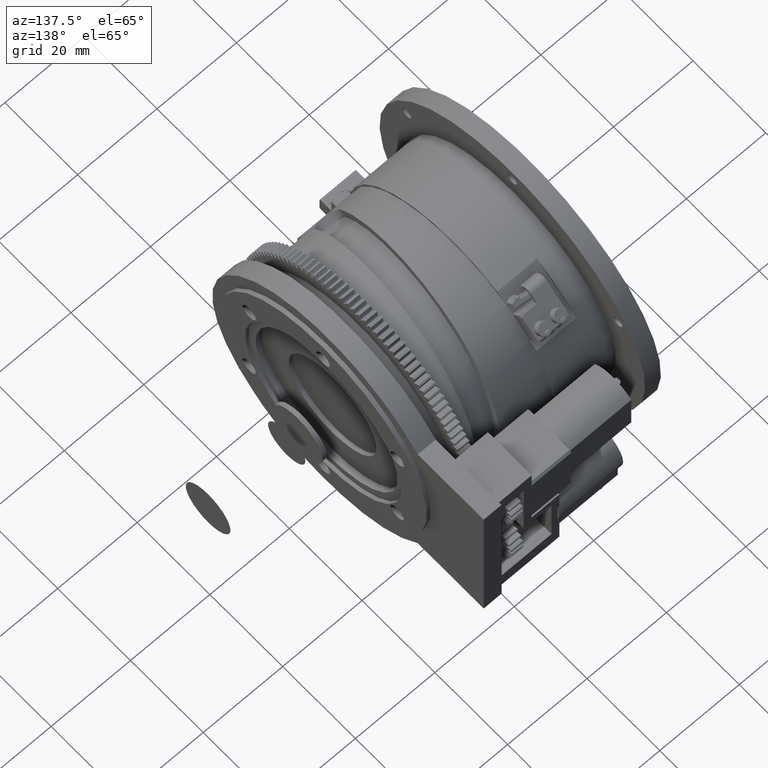
[diagram: clean part render]
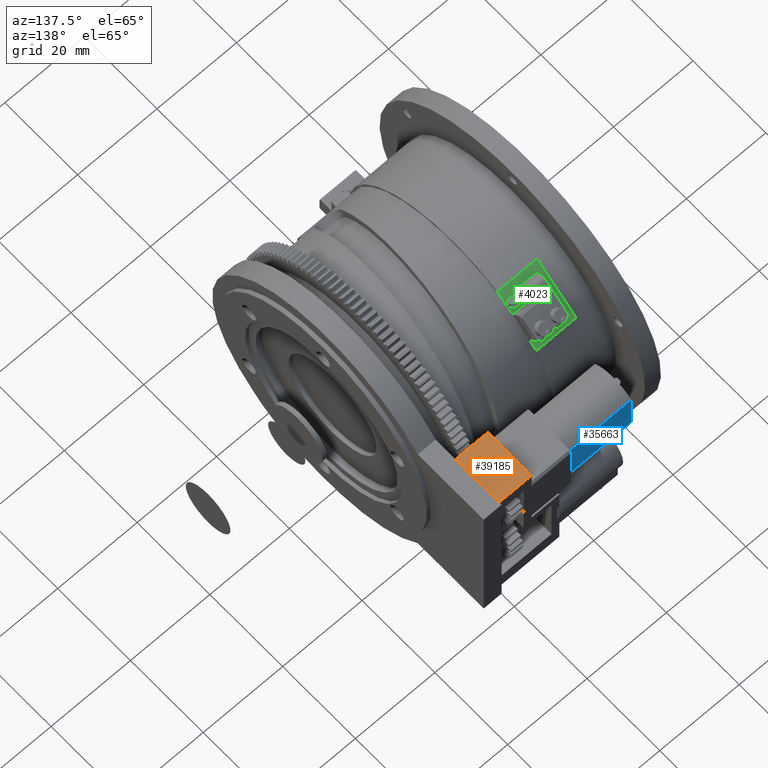
[diagram: same view with three faces highlighted in distinct colors, each labeled with its STEP entity id]
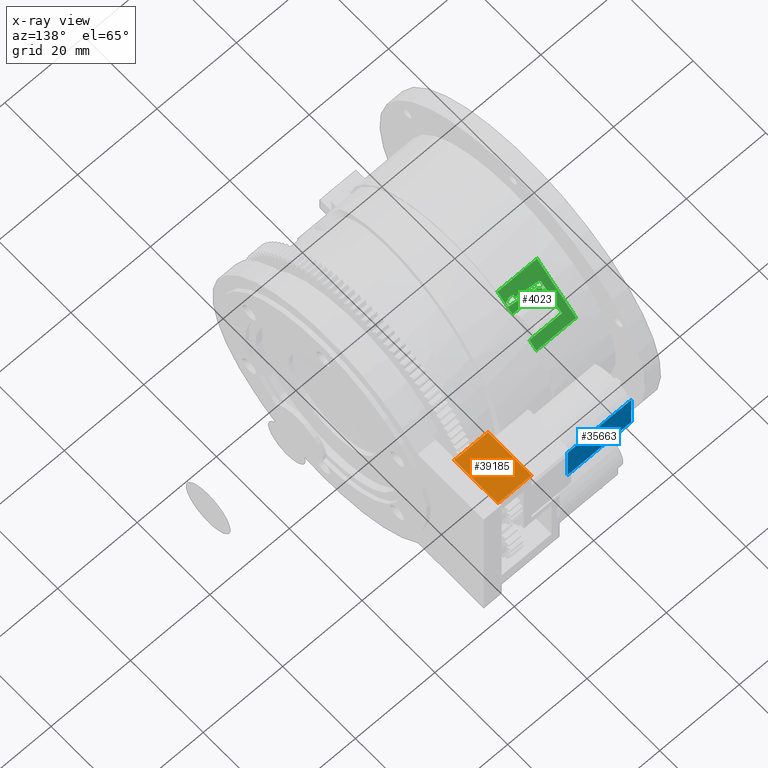
[diagram: x-ray of the same camera — body ghosted, the three highlighted faces saturated]
A machine part, auxiliary view with three faces highlighted in distinct colors.
The next image is the same camera in x-ray (body ghosted, the three faces saturated) — at least one of them is partly hidden behind the body in this view.
Their STEP definitions:

[orange] entity #39185 — the highlighted planar face has unit normal (-0, -0, -1).
#2019 = CARTESIAN_POINT ( 'NONE',  ( 37.44000000000000483, 29.98000000000000753, 18.50000000000000355 ) ) ;
#5666 = ORIENTED_EDGE ( 'NONE', *, *, #29638, .F. ) ;
#5904 = CARTESIAN_POINT ( 'NONE',  ( 45.94000000000001904, 41.98000000000001819, 18.50000000000000355 ) ) ;
#6383 = VECTOR ( 'NONE', #12009, 1000.000000000000000 ) ;
#9900 = VECTOR ( 'NONE', #43400, 1000.000000000000000 ) ;
#10970 = CARTESIAN_POINT ( 'NONE',  ( 45.94000000000001904, 41.98000000000002530, 18.50000000000000355 ) ) ;
#11427 = VERTEX_POINT ( 'NONE', #29837 ) ;
#12009 = DIRECTION ( 'NONE',  ( -3.775652461192201324E-16, -1.000000000000000000, -0.000000000000000000 ) ) ;
#13869 = LINE ( 'NONE', #38617, #6383 ) ;
#15487 = EDGE_CURVE ( 'NONE', #43794, #11427, #23796, .T. ) ;
#18585 = CARTESIAN_POINT ( 'NONE',  ( 37.44000000000001194, 41.98000000000001819, 18.50000000000000355 ) ) ;
#18798 = LINE ( 'NONE', #10970, #53298 ) ;
#19083 = DIRECTION ( 'NONE',  ( -0.000000000000000000, -1.000000000000000000, 5.262361112121564272E-16 ) ) ;
#19385 = CARTESIAN_POINT ( 'NONE',  ( 45.94000000000001904, 41.98000000000002530, 18.50000000000000355 ) ) ;
#23194 = EDGE_CURVE ( 'NONE', #43794, #44353, #13869, .T. ) ;
#23796 = LINE ( 'NONE', #5904, #41369 ) ;
#25244 = EDGE_LOOP ( 'NONE', ( #5666, #29758, #34669, #33561 ) ) ;
#25710 = CARTESIAN_POINT ( 'NONE',  ( 45.16727272727273146, 29.98000000000001464, 18.49999999999998934 ) ) ;
#28023 = FACE_OUTER_BOUND ( 'NONE', #25244, .T. ) ;
#29638 = EDGE_CURVE ( 'NONE', #11427, #42558, #18798, .T. ) ;
#29758 = ORIENTED_EDGE ( 'NONE', *, *, #15487, .F. ) ;
#29837 = CARTESIAN_POINT ( 'NONE',  ( 45.94000000000001904, 41.98000000000001819, 18.50000000000000000 ) ) ;
#30315 = EDGE_CURVE ( 'NONE', #42558, #44353, #34398, .T. ) ;
#33561 = ORIENTED_EDGE ( 'NONE', *, *, #30315, .F. ) ;
#34398 = LINE ( 'NONE', #25710, #9900 ) ;
#34669 = ORIENTED_EDGE ( 'NONE', *, *, #23194, .T. ) ;
#35201 = CARTESIAN_POINT ( 'NONE',  ( 45.94000000000001194, 29.98000000000000753, 18.49999999999999645 ) ) ;
#36535 = DIRECTION ( 'NONE',  ( 1.000000000000000000, -1.543932243363134540E-31, -2.933915424022821619E-16 ) ) ;
#38617 = CARTESIAN_POINT ( 'NONE',  ( 37.44000000000001194, 41.98000000000001819, 18.50000000000000711 ) ) ;
#39185 = ADVANCED_FACE ( 'NONE', ( #28023 ), #41089, .F. ) ;
#41089 = PLANE ( 'NONE',  #49449 ) ;
#41369 = VECTOR ( 'NONE', #36535, 1000.000000000000000 ) ;
#42558 = VERTEX_POINT ( 'NONE', #35201 ) ;
#43400 = DIRECTION ( 'NONE',  ( -1.000000000000000000, 3.775652461192197380E-16, -1.986884668466389617E-31 ) ) ;
#43794 = VERTEX_POINT ( 'NONE', #18585 ) ;
#44353 = VERTEX_POINT ( 'NONE', #2019 ) ;
#44856 = DIRECTION ( 'NONE',  ( 0.000000000000000000, 1.000000000000000000, -5.262361112121564272E-16 ) ) ;
#49198 = DIRECTION ( 'NONE',  ( -2.933915424022821619E-16, -5.262361112121564272E-16, -1.000000000000000000 ) ) ;
#49449 = AXIS2_PLACEMENT_3D ( 'NONE', #19385, #49198, #44856 ) ;
#53298 = VECTOR ( 'NONE', #19083, 1000.000000000000000 ) ;

[blue] entity #35663 — the highlighted planar face has unit normal (0, 1, -0).
#156 = PLANE ( 'NONE',  #32930 ) ;
#217 = VERTEX_POINT ( 'NONE', #7545 ) ;
#642 = CARTESIAN_POINT ( 'NONE',  ( 27.44000000001278750, 40.98000000015527178, 12.39896708664440439 ) ) ;
#3631 = CARTESIAN_POINT ( 'NONE',  ( 500036.9399625599617, 40.97999999996648768, 12.39896708664440439 ) ) ;
#6250 = DIRECTION ( 'NONE',  ( -1.000000000000000000, 3.775652461192197380E-16, -1.986884668466389617E-31 ) ) ;
#6370 = EDGE_CURVE ( 'NONE', #26748, #217, #55487, .T. ) ;
#7545 = CARTESIAN_POINT ( 'NONE',  ( 11.43999999999491735, 40.97999999999975529, 12.39897948556651208 ) ) ;
#8346 = CARTESIAN_POINT ( 'NONE',  ( 11.43999999999996930, 40.97999999999974818, 7.500000000000129674 ) ) ;
#8442 = EDGE_LOOP ( 'NONE', ( #40300, #18299, #19305, #33852 ) ) ;
#8527 = FACE_OUTER_BOUND ( 'NONE', #8442, .T. ) ;
#9015 = LINE ( 'NONE', #642, #17486 ) ;
#10377 = VERTEX_POINT ( 'NONE', #52190 ) ;
#11543 = VECTOR ( 'NONE', #6250, 1000.000000000000000 ) ;
#17486 = VECTOR ( 'NONE', #27186, 1000.000000000000000 ) ;
#17767 = DIRECTION ( 'NONE',  ( 0.000000000000000000, 5.262361112121566245E-16, 1.000000000000000000 ) ) ;
#18299 = ORIENTED_EDGE ( 'NONE', *, *, #46147, .F. ) ;
#19305 = ORIENTED_EDGE ( 'NONE', *, *, #6370, .F. ) ;
#26074 = CARTESIAN_POINT ( 'NONE',  ( 11.43999999999323336, 40.98000000007750998, 2.601020514433761477 ) ) ;
#26748 = VERTEX_POINT ( 'NONE', #51538 ) ;
#27186 = DIRECTION ( 'NONE',  ( -0.000000000000000000, -5.262361112121566245E-16, -1.000000000000000000 ) ) ;
#28012 = VECTOR ( 'NONE', #50567, 1000.000000000000000 ) ;
#30576 = LINE ( 'NONE', #8346, #41294 ) ;
#32930 = AXIS2_PLACEMENT_3D ( 'NONE', #3631, #39484, #17767 ) ;
#33658 = EDGE_CURVE ( 'NONE', #10377, #36042, #42101, .T. ) ;
#33852 = ORIENTED_EDGE ( 'NONE', *, *, #49618, .T. ) ;
#35663 = ADVANCED_FACE ( 'NONE', ( #8527 ), #156, .T. ) ;
#36042 = VERTEX_POINT ( 'NONE', #26074 ) ;
#37758 = CARTESIAN_POINT ( 'NONE',  ( 500036.9399625599617, 40.97999999996648057, 2.601020514433775688 ) ) ;
#39484 = DIRECTION ( 'NONE',  ( 3.775652461192197380E-16, 1.000000000000000000, -5.262361112121566245E-16 ) ) ;
#40300 = ORIENTED_EDGE ( 'NONE', *, *, #33658, .T. ) ;
#41042 = CARTESIAN_POINT ( 'NONE',  ( 500037.4400000000023, 40.97999999996648768, 12.39897948562389907 ) ) ;
#41294 = VECTOR ( 'NONE', #56358, 1000.000000000000000 ) ;
#42101 = LINE ( 'NONE', #37758, #11543 ) ;
#46147 = EDGE_CURVE ( 'NONE', #217, #36042, #30576, .T. ) ;
#49618 = EDGE_CURVE ( 'NONE', #26748, #10377, #9015, .T. ) ;
#50567 = DIRECTION ( 'NONE',  ( -1.000000000000000000, 6.652396373084242215E-17, -1.147786872393195611E-16 ) ) ;
#51538 = CARTESIAN_POINT ( 'NONE',  ( 27.44000000001278750, 40.98000000007750998, 12.39897948548714446 ) ) ;
#52190 = CARTESIAN_POINT ( 'NONE',  ( 27.44000000001278750, 40.98000000015526467, 2.601020514513127768 ) ) ;
#55487 = LINE ( 'NONE', #41042, #28012 ) ;
#56358 = DIRECTION ( 'NONE',  ( 1.147786872393193885E-16, -4.333644329675461626E-32, -1.000000000000000000 ) ) ;

[green] entity #4023 — the highlighted planar face has unit normal (0, -0.6428, -0.766).
#124 = VERTEX_POINT ( 'NONE', #11311 ) ;
#184 = VERTEX_POINT ( 'NONE', #51499 ) ;
#692 = ORIENTED_EDGE ( 'NONE', *, *, #55008, .F. ) ;
#1274 = CARTESIAN_POINT ( 'NONE',  ( 18.73264340575827447, 14.55241667265423544, 23.85353304634130467 ) ) ;
#1818 = VECTOR ( 'NONE', #5910, 999.9999999999998863 ) ;
#2038 = CIRCLE ( 'NONE', #9416, 0.9000000000000014655 ) ;
#2648 = CARTESIAN_POINT ( 'NONE',  ( 11.26287451326856903, 15.57520825383947738, 22.99530900779753395 ) ) ;
#3279 = LINE ( 'NONE', #26084, #5238 ) ;
#3409 = CARTESIAN_POINT ( 'NONE',  ( 13.46287451326857187, 15.76656460667465254, 22.83474196271010825 ) ) ;
#3538 = CARTESIAN_POINT ( 'NONE',  ( 11.21061028163474482, 15.19428426808596555, 23.31494218374988847 ) ) ;
#3606 = ORIENTED_EDGE ( 'NONE', *, *, #49338, .F. ) ;
#4023 = ADVANCED_FACE ( 'NONE', ( #27866 ), #14597, .F. ) ;
#4315 = VECTOR ( 'NONE', #20862, 1000.000000000000114 ) ;
#5238 = VECTOR ( 'NONE', #56203, 1000.000000000000000 ) ;
#5244 = VECTOR ( 'NONE', #31507, 1000.000000000000114 ) ;
#5345 = VERTEX_POINT ( 'NONE', #38509 ) ;
#5571 = VERTEX_POINT ( 'NONE', #42779 ) ;
#5683 = ORIENTED_EDGE ( 'NONE', *, *, #29525, .F. ) ;
#5698 = ORIENTED_EDGE ( 'NONE', *, *, #27671, .F. ) ;
#5733 = EDGE_CURVE ( 'NONE', #38189, #45143, #6251, .T. ) ;
#5910 = DIRECTION ( 'NONE',  ( -0.9945218953682729568, 0.08007344843395539091, -0.06718960104802559896 ) ) ;
#6208 = DIRECTION ( 'NONE',  ( 0.000000000000000000, 0.7660444431189747938, -0.6427876096865431377 ) ) ;
#6251 = LINE ( 'NONE', #19535, #53404 ) ;
#7662 = CARTESIAN_POINT ( 'NONE',  ( 11.36287451326857045, 16.53260904979362778, 22.19195435302356501 ) ) ;
#7769 = ORIENTED_EDGE ( 'NONE', *, *, #45816, .F. ) ;
#8105 = CARTESIAN_POINT ( 'NONE',  ( 13.46287451326857187, 16.53260904979362778, 22.19195435302356501 ) ) ;
#8368 = EDGE_CURVE ( 'NONE', #14058, #49897, #35285, .T. ) ;
#8474 = DIRECTION ( 'NONE',  ( -1.000000000000000000, -0.000000000000000000, -0.000000000000000000 ) ) ;
#9416 = AXIS2_PLACEMENT_3D ( 'NONE', #2648, #25438, #47464 ) ;
#10198 = VERTEX_POINT ( 'NONE', #54803 ) ;
#10989 = CIRCLE ( 'NONE', #25755, 0.4999999999999991118 ) ;
#11049 = CARTESIAN_POINT ( 'NONE',  ( 18.96287451326856655, 12.39596905695118600, 25.66300744533088363 ) ) ;
#11311 = CARTESIAN_POINT ( 'NONE',  ( 18.96287451326856655, 21.24777866763800560, 18.23545726575198245 ) ) ;
#11431 = LINE ( 'NONE', #37472, #54436 ) ;
#11634 = LINE ( 'NONE', #33038, #36167 ) ;
#11670 = VECTOR ( 'NONE', #13461, 1000.000000000000000 ) ;
#11717 = EDGE_CURVE ( 'NONE', #11898, #184, #2038, .T. ) ;
#11898 = VERTEX_POINT ( 'NONE', #12755 ) ;
#12269 = VERTEX_POINT ( 'NONE', #23962 ) ;
#12665 = CARTESIAN_POINT ( 'NONE',  ( 18.73264340575827802, 14.55241667265423544, 23.85353304634130467 ) ) ;
#12755 = CARTESIAN_POINT ( 'NONE',  ( 12.12313468641276337, 15.77781569111232685, 22.82530118190810597 ) ) ;
#13461 = DIRECTION ( 'NONE',  ( 0.1045284632676557468, 0.7618479715070136660, -0.6392663519047055987 ) ) ;
#13619 = DIRECTION ( 'NONE',  ( 0.000000000000000000, -0.7660444431189755710, 0.6427876096865421385 ) ) ;
#13690 = EDGE_CURVE ( 'NONE', #16898, #10198, #18748, .T. ) ;
#14038 = LINE ( 'NONE', #17793, #11670 ) ;
#14058 = VERTEX_POINT ( 'NONE', #33654 ) ;
#14291 = VERTEX_POINT ( 'NONE', #1274 ) ;
#14394 = VECTOR ( 'NONE', #56994, 999.9999999999998863 ) ;
#14406 = EDGE_CURVE ( 'NONE', #48612, #16898, #11634, .T. ) ;
#14410 = DIRECTION ( 'NONE',  ( -1.000000000000000000, -0.000000000000000000, -0.000000000000000000 ) ) ;
#14597 = PLANE ( 'NONE',  #34911 ) ;
#14837 = VERTEX_POINT ( 'NONE', #29186 ) ;
#15227 = VERTEX_POINT ( 'NONE', #7662 ) ;
#15563 = LINE ( 'NONE', #33188, #48846 ) ;
#16323 = VECTOR ( 'NONE', #13619, 1000.000000000000227 ) ;
#16898 = VERTEX_POINT ( 'NONE', #11049 ) ;
#17124 = CARTESIAN_POINT ( 'NONE',  ( 18.96287451326857010, 23.12059126061681624, 16.66398090971928170 ) ) ;
#17481 = DIRECTION ( 'NONE',  ( 0.000000000000000000, -0.7660444431189750158, 0.6427876096865429156 ) ) ;
#17793 = CARTESIAN_POINT ( 'NONE',  ( 16.66728880751761110, 14.29278402298343309, 24.07139070692165816 ) ) ;
#18035 = VECTOR ( 'NONE', #17481, 1000.000000000000000 ) ;
#18177 = EDGE_CURVE ( 'NONE', #41366, #53921, #11431, .T. ) ;
#18186 = VECTOR ( 'NONE', #44465, 1000.000000000000114 ) ;
#18269 = CARTESIAN_POINT ( 'NONE',  ( 11.21061028163474127, 15.19428426808596555, 23.31494218374988847 ) ) ;
#18505 = EDGE_CURVE ( 'NONE', #28337, #12269, #32761, .T. ) ;
#18748 = LINE ( 'NONE', #36364, #27031 ) ;
#19337 = VECTOR ( 'NONE', #41167, 1000.000000000000114 ) ;
#19354 = EDGE_LOOP ( 'NONE', ( #48776, #22852, #48906, #31607, #5698, #53068, #28871, #3606, #38022, #33508, #24370, #51521, #32813, #53000, #49945, #7769, #52951, #5683, #38740, #47861, #34437, #53281, #692 ) ) ;
#19501 = LINE ( 'NONE', #55645, #21115 ) ;
#19535 = CARTESIAN_POINT ( 'NONE',  ( 13.46287451326857010, 16.53260904979362778, 22.19195435302356145 ) ) ;
#19728 = DIRECTION ( 'NONE',  ( 0.000000000000000000, 0.7660444431189747938, -0.6427876096865431377 ) ) ;
#19760 = CARTESIAN_POINT ( 'NONE',  ( 8.962874513268566545, 16.53260904979362778, 22.19195435302356501 ) ) ;
#20110 = LINE ( 'NONE', #55113, #35730 ) ;
#20178 = DIRECTION ( 'NONE',  ( 0.000000000000000000, -0.7660444431189739056, 0.6427876096865442479 ) ) ;
#20235 = CARTESIAN_POINT ( 'NONE',  ( 12.36287451326856868, 16.53260904979362778, 22.19195435302355790 ) ) ;
#20862 = DIRECTION ( 'NONE',  ( 0.9945218953682729568, -0.08007344843395487743, 0.06718960104802530753 ) ) ;
#21115 = VECTOR ( 'NONE', #51277, 1000.000000000000114 ) ;
#21214 = VERTEX_POINT ( 'NONE', #49099 ) ;
#21975 = CARTESIAN_POINT ( 'NONE',  ( 12.36287451326856868, 15.76656460667465254, 22.83474196271010470 ) ) ;
#22539 = LINE ( 'NONE', #40227, #16323 ) ;
#22852 = ORIENTED_EDGE ( 'NONE', *, *, #5733, .T. ) ;
#23859 = DIRECTION ( 'NONE',  ( 0.000000000000000000, -0.7660444431189753489, 0.6427876096865426936 ) ) ;
#23962 = CARTESIAN_POINT ( 'NONE',  ( 16.66728880751761110, 14.29278402298343131, 24.07139070692165816 ) ) ;
#24370 = ORIENTED_EDGE ( 'NONE', *, *, #18505, .T. ) ;
#24451 = VERTEX_POINT ( 'NONE', #49097 ) ;
#25183 = LINE ( 'NONE', #51828, #46796 ) ;
#25438 = DIRECTION ( 'NONE',  ( 4.996528638909141207E-17, 0.6427876096865432487, 0.7660444431189749048 ) ) ;
#25755 = AXIS2_PLACEMENT_3D ( 'NONE', #51106, #47667, #20178 ) ;
#25889 = EDGE_CURVE ( 'NONE', #10198, #41366, #19501, .T. ) ;
#26036 = CARTESIAN_POINT ( 'NONE',  ( 18.96287451326856655, 21.24777866763799850, 18.23545726575199311 ) ) ;
#26084 = CARTESIAN_POINT ( 'NONE',  ( 13.46287451326857010, 15.76656460667465254, 22.83474196271010470 ) ) ;
#26124 = LINE ( 'NONE', #29877, #18035 ) ;
#26830 = VERTEX_POINT ( 'NONE', #18269 ) ;
#27031 = VECTOR ( 'NONE', #14410, 1000.000000000000000 ) ;
#27383 = EDGE_CURVE ( 'NONE', #14291, #28337, #38989, .T. ) ;
#27625 = VERTEX_POINT ( 'NONE', #41549 ) ;
#27671 = EDGE_CURVE ( 'NONE', #15227, #49897, #20110, .T. ) ;
#27866 = FACE_OUTER_BOUND ( 'NONE', #19354, .T. ) ;
#28337 = VERTEX_POINT ( 'NONE', #41043 ) ;
#28871 = ORIENTED_EDGE ( 'NONE', *, *, #11717, .F. ) ;
#28875 = EDGE_CURVE ( 'NONE', #12269, #5345, #14038, .T. ) ;
#29186 = CARTESIAN_POINT ( 'NONE',  ( 18.96287451326856655, 16.53260904979362778, 22.19195435302355790 ) ) ;
#29525 = EDGE_CURVE ( 'NONE', #53921, #124, #22539, .T. ) ;
#29541 = EDGE_CURVE ( 'NONE', #124, #5571, #44283, .T. ) ;
#29877 = CARTESIAN_POINT ( 'NONE',  ( 18.96287451326856655, 16.53260904979362778, 22.19195435302356145 ) ) ;
#30617 = LINE ( 'NONE', #34681, #45824 ) ;
#31478 = LINE ( 'NONE', #48114, #56056 ) ;
#31507 = DIRECTION ( 'NONE',  ( 0.000000000000000000, -0.7660444431189696868, 0.6427876096865493549 ) ) ;
#31607 = ORIENTED_EDGE ( 'NONE', *, *, #8368, .T. ) ;
#32171 = LINE ( 'NONE', #49841, #19337 ) ;
#32761 = LINE ( 'NONE', #45537, #1818 ) ;
#32813 = ORIENTED_EDGE ( 'NONE', *, *, #56071, .F. ) ;
#33038 = CARTESIAN_POINT ( 'NONE',  ( 18.96287451326856655, 14.26878164992998954, 24.09153108929817932 ) ) ;
#33188 = CARTESIAN_POINT ( 'NONE',  ( 10.76287451326857258, 23.12059126061681980, 16.66398090971928880 ) ) ;
#33508 = ORIENTED_EDGE ( 'NONE', *, *, #27383, .T. ) ;
#33654 = CARTESIAN_POINT ( 'NONE',  ( 12.36287451326856868, 15.76656460667465254, 22.83474196271010825 ) ) ;
#33806 = CARTESIAN_POINT ( 'NONE',  ( 8.962874513268566545, 23.12059126061681624, 16.66398090971929591 ) ) ;
#34437 = ORIENTED_EDGE ( 'NONE', *, *, #13690, .F. ) ;
#34681 = CARTESIAN_POINT ( 'NONE',  ( 18.82671902269916586, 15.23807984701054608, 23.27819332962707577 ) ) ;
#34911 = AXIS2_PLACEMENT_3D ( 'NONE', #37417, #41785, #6208 ) ;
#35285 = LINE ( 'NONE', #21975, #14394 ) ;
#35730 = VECTOR ( 'NONE', #47311, 1000.000000000000000 ) ;
#36167 = VECTOR ( 'NONE', #46941, 1000.000000000000000 ) ;
#36364 = CARTESIAN_POINT ( 'NONE',  ( 0.000000000000000000, 12.39596905695117179, 25.66300744533088718 ) ) ;
#37417 = CARTESIAN_POINT ( 'NONE',  ( 8.962874513268566545, 23.12059126061681980, 16.66398090971928880 ) ) ;
#37472 = CARTESIAN_POINT ( 'NONE',  ( 0.000000000000000000, 23.12059126061681980, 16.66398090971928170 ) ) ;
#38022 = ORIENTED_EDGE ( 'NONE', *, *, #40351, .T. ) ;
#38189 = VERTEX_POINT ( 'NONE', #8105 ) ;
#38509 = CARTESIAN_POINT ( 'NONE',  ( 16.73000588547820300, 14.74989280588764018, 23.68783089577884482 ) ) ;
#38740 = ORIENTED_EDGE ( 'NONE', *, *, #18177, .F. ) ;
#38989 = LINE ( 'NONE', #12665, #18186 ) ;
#40227 = CARTESIAN_POINT ( 'NONE',  ( 18.96287451326856655, 23.12059126061681980, 16.66398090971928880 ) ) ;
#40351 = EDGE_CURVE ( 'NONE', #27625, #14291, #30617, .T. ) ;
#41043 = CARTESIAN_POINT ( 'NONE',  ( 17.66181070288588373, 14.21271057454947595, 24.13858030796968279 ) ) ;
#41167 = DIRECTION ( 'NONE',  ( -0.9945218953682727347, 0.08007344843395550193, -0.06718960104802605693 ) ) ;
#41366 = VERTEX_POINT ( 'NONE', #33806 ) ;
#41549 = CARTESIAN_POINT ( 'NONE',  ( 18.82671902269916586, 15.23807984701054608, 23.27819332962707932 ) ) ;
#41785 = DIRECTION ( 'NONE',  ( 0.000000000000000000, -0.6427876096865432487, -0.7660444431189749048 ) ) ;
#41830 = CARTESIAN_POINT ( 'NONE',  ( 18.96287451326856655, 14.26878164992997533, 24.09153108929818998 ) ) ;
#41894 = DIRECTION ( 'NONE',  ( -0.000000000000000000, -0.7660444431189747938, 0.6427876096865431377 ) ) ;
#42779 = CARTESIAN_POINT ( 'NONE',  ( 18.96287451326856655, 21.20548015281937637, 18.27094993393565048 ) ) ;
#43457 = LINE ( 'NONE', #3538, #4315 ) ;
#44283 = LINE ( 'NONE', #26036, #5244 ) ;
#44465 = DIRECTION ( 'NONE',  ( -0.9239096106412345577, -0.2930968843130495882, 0.2459374875262922977 ) ) ;
#45128 = EDGE_CURVE ( 'NONE', #21214, #26830, #10989, .T. ) ;
#45143 = VERTEX_POINT ( 'NONE', #3409 ) ;
#45537 = CARTESIAN_POINT ( 'NONE',  ( 17.66181070288588373, 14.21271057454947417, 24.13858030796968279 ) ) ;
#45816 = EDGE_CURVE ( 'NONE', #5571, #24451, #31478, .T. ) ;
#45818 = DIRECTION ( 'NONE',  ( 1.000000000000000000, 0.000000000000000000, 0.000000000000000000 ) ) ;
#45824 = VECTOR ( 'NONE', #52336, 1000.000000000000114 ) ;
#46796 = VECTOR ( 'NONE', #19728, 1000.000000000000114 ) ;
#46941 = DIRECTION ( 'NONE',  ( 0.000000000000000000, -0.7660444431189733505, 0.6427876096865449140 ) ) ;
#47311 = DIRECTION ( 'NONE',  ( 1.000000000000000000, 0.000000000000000000, 0.000000000000000000 ) ) ;
#47464 = DIRECTION ( 'NONE',  ( 0.000000000000000000, -0.7660444431189751269, 0.6427876096865429156 ) ) ;
#47667 = DIRECTION ( 'NONE',  ( 4.996528638909141207E-17, 0.6427876096865432487, 0.7660444431189749048 ) ) ;
#47861 = ORIENTED_EDGE ( 'NONE', *, *, #25889, .F. ) ;
#48114 = CARTESIAN_POINT ( 'NONE',  ( 8.962874513268566545, 21.20548015281937282, 18.27094993393565403 ) ) ;
#48291 = EDGE_CURVE ( 'NONE', #24451, #21214, #15563, .T. ) ;
#48612 = VERTEX_POINT ( 'NONE', #41830 ) ;
#48776 = ORIENTED_EDGE ( 'NONE', *, *, #48862, .F. ) ;
#48846 = VECTOR ( 'NONE', #41894, 1000.000000000000114 ) ;
#48862 = EDGE_CURVE ( 'NONE', #38189, #14837, #55055, .T. ) ;
#48906 = ORIENTED_EDGE ( 'NONE', *, *, #52950, .T. ) ;
#49097 = CARTESIAN_POINT ( 'NONE',  ( 10.76287451326857258, 21.20548015281937637, 18.27094993393565403 ) ) ;
#49099 = CARTESIAN_POINT ( 'NONE',  ( 10.76287451326857258, 15.57520825383947738, 22.99530900779753040 ) ) ;
#49338 = EDGE_CURVE ( 'NONE', #27625, #11898, #32171, .T. ) ;
#49765 = VECTOR ( 'NONE', #45818, 1000.000000000000000 ) ;
#49841 = CARTESIAN_POINT ( 'NONE',  ( 18.82671902269916586, 15.23807984701054608, 23.27819332962707932 ) ) ;
#49897 = VERTEX_POINT ( 'NONE', #20235 ) ;
#49945 = ORIENTED_EDGE ( 'NONE', *, *, #48291, .F. ) ;
#51106 = CARTESIAN_POINT ( 'NONE',  ( 11.26287451326856903, 15.57520825383947383, 22.99530900779753040 ) ) ;
#51277 = DIRECTION ( 'NONE',  ( 0.000000000000000000, 0.7660444431189747938, -0.6427876096865431377 ) ) ;
#51499 = CARTESIAN_POINT ( 'NONE',  ( 11.36287451326857045, 16.26037923327947610, 22.42038229165605046 ) ) ;
#51521 = ORIENTED_EDGE ( 'NONE', *, *, #28875, .T. ) ;
#51828 = CARTESIAN_POINT ( 'NONE',  ( 11.36287451326857045, 23.12059126061681980, 16.66398090971928880 ) ) ;
#52336 = DIRECTION ( 'NONE',  ( -0.1045284632676594522, -0.7618479715070156644, 0.6392663519047026011 ) ) ;
#52950 = EDGE_CURVE ( 'NONE', #45143, #14058, #3279, .T. ) ;
#52951 = ORIENTED_EDGE ( 'NONE', *, *, #29541, .F. ) ;
#53000 = ORIENTED_EDGE ( 'NONE', *, *, #45128, .F. ) ;
#53068 = ORIENTED_EDGE ( 'NONE', *, *, #53752, .F. ) ;
#53281 = ORIENTED_EDGE ( 'NONE', *, *, #14406, .F. ) ;
#53404 = VECTOR ( 'NONE', #23859, 999.9999999999998863 ) ;
#53752 = EDGE_CURVE ( 'NONE', #184, #15227, #25183, .T. ) ;
#53921 = VERTEX_POINT ( 'NONE', #17124 ) ;
#54436 = VECTOR ( 'NONE', #55690, 1000.000000000000000 ) ;
#54803 = CARTESIAN_POINT ( 'NONE',  ( 8.962874513268566545, 12.39596905695117890, 25.66300744533088363 ) ) ;
#55008 = EDGE_CURVE ( 'NONE', #14837, #48612, #26124, .T. ) ;
#55055 = LINE ( 'NONE', #19760, #49765 ) ;
#55113 = CARTESIAN_POINT ( 'NONE',  ( 8.962874513268566545, 16.53260904979362778, 22.19195435302356501 ) ) ;
#55645 = CARTESIAN_POINT ( 'NONE',  ( 8.962874513268566545, 23.12059126061681980, 16.66398090971928880 ) ) ;
#55690 = DIRECTION ( 'NONE',  ( 1.000000000000000000, 0.000000000000000000, 0.000000000000000000 ) ) ;
#56056 = VECTOR ( 'NONE', #8474, 1000.000000000000000 ) ;
#56071 = EDGE_CURVE ( 'NONE', #26830, #5345, #43457, .T. ) ;
#56203 = DIRECTION ( 'NONE',  ( -1.000000000000000000, -2.766597819957529371E-17, 2.321451210342254540E-17 ) ) ;
#56994 = DIRECTION ( 'NONE',  ( 0.000000000000000000, 0.7660444431189753489, -0.6427876096865426936 ) ) ;